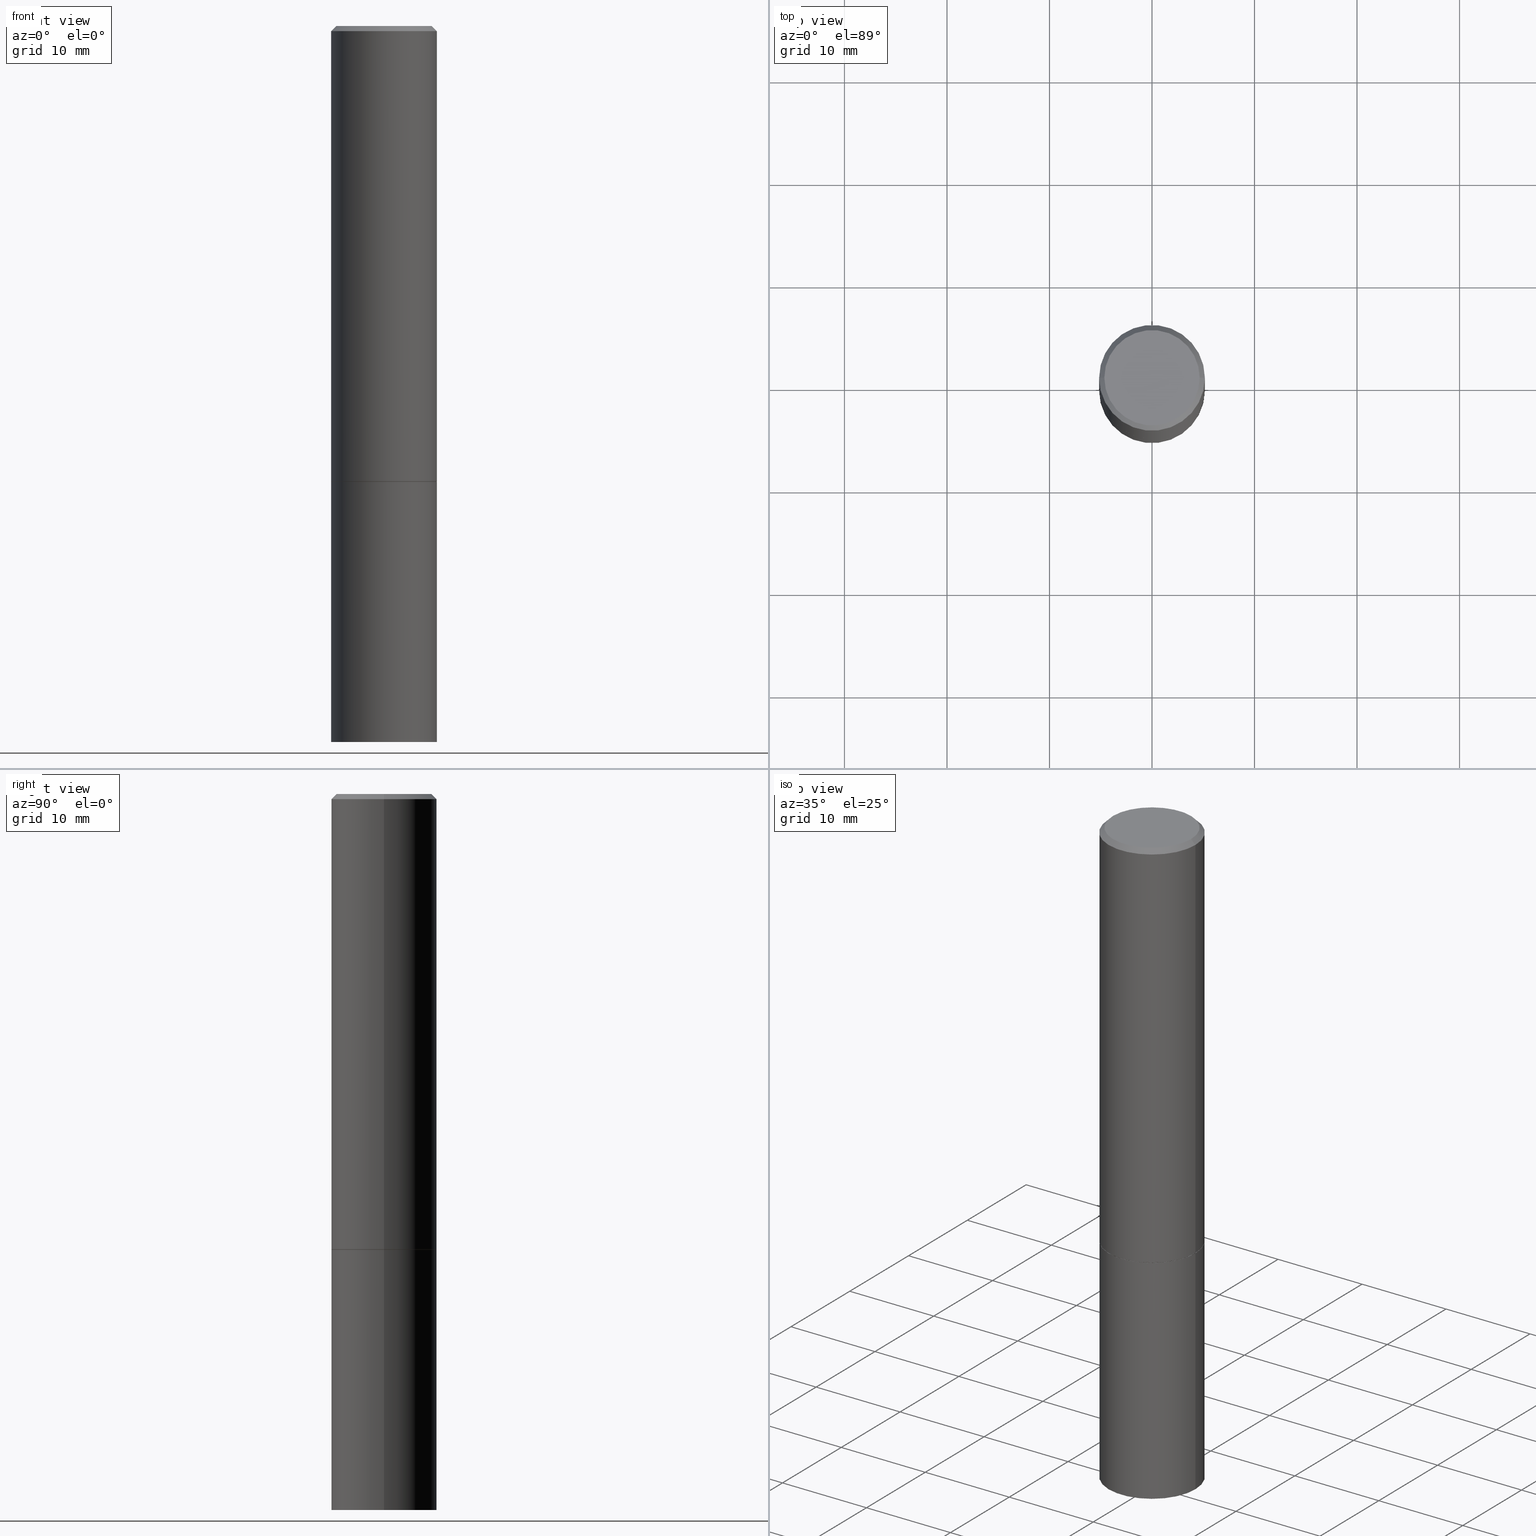
[diagram: canonical four-view strip — front | top / right | iso, engineering-drawing reading convention]
A machine part, canonical four-view strip (front | top / right | iso — engineering-drawing reading convention). The complete STEP part file that produces these views, byte-faithful:
ISO-10303-21;
HEADER;
FILE_DESCRIPTION (( 'STEP AP203' ),
    '1' );
FILE_NAME ('30151.STEP',
    '2023-03-21T20:23:18',
    ( '' ),
    ( '' ),
    'SwSTEP 2.0',
    'SolidWorks 2022',
    '' );
FILE_SCHEMA (( 'CONFIG_CONTROL_DESIGN' ));
ENDSEC;

DATA;
#1 = CARTESIAN_POINT ( 'NONE',  ( 1.418239719838123571E-15, 0.2030999999999938965, -1.750000000000000666 ) ) ;
#2 = CARTESIAN_POINT ( 'NONE',  ( -4.871854198842910760E-19, -9.564410284714797883E-15, -2.739355980027615711 ) ) ;
#3 = UNCERTAINTY_MEASURE_WITH_UNIT (LENGTH_MEASURE( 1.000000000000000082E-05 ), #272, 'distance_accuracy_value', 'NONE');
#4 = CARTESIAN_POINT ( 'NONE',  ( 0.2031000000000000028, -1.418239719838080775E-15, 9.903515031641546145E-30 ) ) ;
#5 = AXIS2_PLACEMENT_3D ( 'NONE', #106, #217, #305 ) ;
#6 = DIRECTION ( 'NONE',  ( -2.445468806185136597E-29, 3.491481338843145583E-15, 1.000000000000000000 ) ) ;
#7 = CC_DESIGN_APPROVAL ( #101, ( #180 ) ) ;
#8 = EDGE_CURVE ( 'NONE', #208, #133, #359, .T. ) ;
#9 = DIRECTION ( 'NONE',  ( -2.445468806185136597E-29, 3.491481338843145583E-15, 1.000000000000000000 ) ) ;
#10 = DIRECTION ( 'NONE',  ( 1.000000000000000000, -6.982962677686264344E-15, 0.000000000000000000 ) ) ;
#11 = ORIENTED_EDGE ( 'NONE', *, *, #385, .T. ) ;
#12 = DIRECTION ( 'NONE',  ( 1.000000000000000000, -6.982962677686269077E-15, 0.000000000000000000 ) ) ;
#13 = AXIS2_PLACEMENT_3D ( 'NONE', #328, #209, #129 ) ;
#14 = CC_DESIGN_APPROVAL ( #288, ( #35 ) ) ;
#15 = APPROVAL_ROLE ( '' ) ;
#16 = LINE ( 'NONE', #273, #61 ) ;
#17 = EDGE_CURVE ( 'NONE', #298, #227, #282, .T. ) ;
#18 = DIRECTION ( 'NONE',  ( 0.000000000000000000, 0.000000000000000000, 1.000000000000000000 ) ) ;
#19 = PERSON_AND_ORGANIZATION_ROLE ( 'creator' ) ;
#20 = CIRCLE ( 'NONE', #285, 0.2030999999999998362 ) ;
#21 = SECURITY_CLASSIFICATION ( '', '', #313 ) ;
#22 = DIRECTION ( 'NONE',  ( 1.000000000000000000, -6.982962677686264344E-15, 0.000000000000000000 ) ) ;
#23 = COORDINATED_UNIVERSAL_TIME_OFFSET ( 5, 0, .BEHIND. ) ;
#24 = EDGE_LOOP ( 'NONE', ( #302, #171, #164, #235 ) ) ;
#25 = APPROVAL_ROLE ( '' ) ;
#26 = ORIENTED_EDGE ( 'NONE', *, *, #130, .T. ) ;
#27 = PRODUCT ( '30151', '30151', '', ( #191 ) ) ;
#28 = FACE_OUTER_BOUND ( 'NONE', #201, .T. ) ;
#29 = DIRECTION ( 'NONE',  ( -1.000000000000000000, 6.982962677686266711E-15, 0.000000000000000000 ) ) ;
#30 = CONICAL_SURFACE ( 'NONE', #13, 0.2030999999999998362, 0.7853981633974469467 ) ;
#31 = EDGE_LOOP ( 'NONE', ( #82, #356 ) ) ;
#32 = PERSON ( 'UNSPECIFIED', 'UNSPECIFIED', 'UNSPECIFIED', ('UNSPECIFIED'), ('UNSPECIFIED'), ('UNSPECIFIED') ) ;
#33 = LINE ( 'NONE', #183, #197 ) ;
#34 = CARTESIAN_POINT ( 'NONE',  ( 0.1830999999999998462, -1.359676976758113188E-15, 9.224940175330600101E-30 ) ) ;
#35 = PRODUCT_DEFINITION ( 'UNKNOWN', '', #180, #337 ) ;
#36 = CARTESIAN_POINT ( 'NONE',  ( 4.279570410823988484E-29, -6.110092342975504671E-15, -1.750000000000000000 ) ) ;
#37 = CIRCLE ( 'NONE', #224, 0.2021000000000000019 ) ;
#38 = CYLINDRICAL_SURFACE ( 'NONE', #110, 0.2030999999999999472 ) ;
#39 = ORIENTED_EDGE ( 'NONE', *, *, #381, .F. ) ;
#40 = DIRECTION ( 'NONE',  ( -2.445468806185136597E-29, 3.491481338843145583E-15, 1.000000000000000000 ) ) ;
#41 = VECTOR ( 'NONE', #339, 39.37007874015748143 ) ;
#42 = FACE_OUTER_BOUND ( 'NONE', #74, .T. ) ;
#43 = ADVANCED_FACE ( 'NONE', ( #46 ), #73, .T. ) ;
#44 = APPROVAL_DATE_TIME ( #308, #288 ) ;
#45 = ADVANCED_FACE ( 'NONE', ( #107 ), #219, .F. ) ;
#46 = FACE_OUTER_BOUND ( 'NONE', #258, .T. ) ;
#47 = DIRECTION ( 'NONE',  ( -2.445468806185136597E-29, 3.491481338843145583E-15, 1.000000000000000000 ) ) ;
#48 = AXIS2_PLACEMENT_3D ( 'NONE', #102, #134, #333 ) ;
#49 = PERSON_AND_ORGANIZATION ( #32, #62 ) ;
#50 = EDGE_CURVE ( 'NONE', #325, #387, #255, .T. ) ;
#51 = PERSON_AND_ORGANIZATION_ROLE ( 'design_supplier' ) ;
#52 = ORIENTED_EDGE ( 'NONE', *, *, #366, .T. ) ;
#53 = APPROVAL_STATUS ( 'not_yet_approved' ) ;
#54 = ORIENTED_EDGE ( 'NONE', *, *, #366, .F. ) ;
#55 = DATE_AND_TIME ( #225, #326 ) ;
#56 = ORIENTED_EDGE ( 'NONE', *, *, #322, .T. ) ;
#57 = DIRECTION ( 'NONE',  ( 1.000000000000000000, -6.982962677686266711E-15, 4.876176775795935793E-29 ) ) ;
#58 = ORIENTED_EDGE ( 'NONE', *, *, #318, .F. ) ;
#59 = DIRECTION ( 'NONE',  ( -2.445468806185136597E-29, 3.491481338843145583E-15, 1.000000000000000000 ) ) ;
#60 = CARTESIAN_POINT ( 'NONE',  ( 4.279570410823989044E-29, -6.110092342975505460E-15, -1.750000000000000222 ) ) ;
#61 = VECTOR ( 'NONE', #138, 39.37007874015748143 ) ;
#62 = ORGANIZATION ( 'UNSPECIFIED', 'UNSPECIFIED', '' ) ;
#63 = CARTESIAN_POINT ( 'NONE',  ( 0.2021000000000000019, -7.521349100135901010E-15, -1.750000000000000222 ) ) ;
#64 = CARTESIAN_POINT ( 'NONE',  ( -0.1830999999999998462, 1.313495279672785236E-15, -9.063697641761070783E-30 ) ) ;
#65 = EDGE_LOOP ( 'NONE', ( #382, #250 ) ) ;
#66 = DIRECTION ( 'NONE',  ( 1.000000000000000000, -6.982962677686269077E-15, 0.000000000000000000 ) ) ;
#67 = EDGE_CURVE ( 'NONE', #208, #281, #114, .T. ) ;
#68 = LOCAL_TIME ( 16, 23, 18.00000000000000000, #278 ) ;
#69 = FACE_OUTER_BOUND ( 'NONE', #316, .T. ) ;
#70 =( LENGTH_UNIT ( ) NAMED_UNIT ( * ) SI_UNIT ( $, .METRE. ) );
#71 = EDGE_CURVE ( 'NONE', #227, #266, #168, .T. ) ;
#72 = DIRECTION ( 'NONE',  ( -2.445468806185136597E-29, 3.491481338843145583E-15, 1.000000000000000000 ) ) ;
#73 = CYLINDRICAL_SURFACE ( 'NONE', #276, 0.2031000000000000028 ) ;
#74 = EDGE_LOOP ( 'NONE', ( #58, #188, #321, #152 ) ) ;
#75 = DIRECTION ( 'NONE',  ( -2.445468806185136597E-29, 3.491481338843145583E-15, 1.000000000000000000 ) ) ;
#76 = CIRCLE ( 'NONE', #324, 0.1830999999999998462 ) ;
#77 = LENGTH_MEASURE_WITH_UNIT ( LENGTH_MEASURE( 0.02539999999999999897 ), #70 );
#78 = ADVANCED_FACE ( 'NONE', ( #213 ), #153, .F. ) ;
#79 = CC_DESIGN_DATE_AND_TIME_ASSIGNMENT ( #55, #170, ( #21 ) ) ;
#80 = AXIS2_PLACEMENT_3D ( 'NONE', #362, #294, #156 ) ;
#81 = CC_DESIGN_PERSON_AND_ORGANIZATION_ASSIGNMENT ( #49, #379, ( #21 ) ) ;
#82 = ORIENTED_EDGE ( 'NONE', *, *, #260, .T. ) ;
#83 = CARTESIAN_POINT ( 'NONE',  ( -0.2030999999999998362, 1.348410093061216491E-15, -0.02000000000000004552 ) ) ;
#84 = AXIS2_PLACEMENT_3D ( 'NONE', #373, #159, #177 ) ;
#85 = APPROVAL_PERSON_ORGANIZATION ( #376, #101, #172 ) ;
#86 = DIRECTION ( 'NONE',  ( -2.445468806185136597E-29, 3.491481338843145583E-15, 1.000000000000000000 ) ) ;
#87 = ORIENTED_EDGE ( 'NONE', *, *, #277, .T. ) ;
#88 = DIRECTION ( 'NONE',  ( -0.9986295347545742773, 6.790662755453668466E-15, -0.05233595624293643084 ) ) ;
#89 = ORIENTED_EDGE ( 'NONE', *, *, #215, .F. ) ;
#90 = FACE_OUTER_BOUND ( 'NONE', #104, .T. ) ;
#91 = CYLINDRICAL_SURFACE ( 'NONE', #251, 0.2030999999999999472 ) ;
#92 = CLOSED_SHELL ( 'NONE', ( #344, #203, #253, #117, #374, #121, #158, #162 ) ) ;
#93 = VECTOR ( 'NONE', #261, 39.37007874015748143 ) ;
#94 = EDGE_CURVE ( 'NONE', #387, #325, #292, .T. ) ;
#95 = VERTEX_POINT ( 'NONE', #142 ) ;
#96 = DIMENSIONAL_EXPONENTS ( 1.000000000000000000, 0.000000000000000000, 0.000000000000000000, 0.000000000000000000, 0.000000000000000000, 0.000000000000000000, 0.000000000000000000 ) ;
#97 = CARTESIAN_POINT ( 'NONE',  ( -0.2021000000000000019, -4.674085474004342577E-15, -1.750000000000000222 ) ) ;
#98 = ORIENTED_EDGE ( 'NONE', *, *, #341, .F. ) ;
#99 = PERSON_AND_ORGANIZATION ( #32, #62 ) ;
#100 = ORIENTED_EDGE ( 'NONE', *, *, #50, .F. ) ;
#101 = APPROVAL ( #53, 'UNSPECIFIED' ) ;
#102 = CARTESIAN_POINT ( 'NONE',  ( 0.000000000000000000, 0.000000000000000000, 0.000000000000000000 ) ) ;
#103 = AXIS2_PLACEMENT_3D ( 'NONE', #248, #72, #364 ) ;
#104 = EDGE_LOOP ( 'NONE', ( #338, #56 ) ) ;
#105 = VERTEX_POINT ( 'NONE', #377 ) ;
#106 = CARTESIAN_POINT ( 'NONE',  ( 6.725039217009124520E-29, -9.601573681818649859E-15, -2.750000000000000000 ) ) ;
#107 = FACE_OUTER_BOUND ( 'NONE', #155, .T. ) ;
#108 =( NAMED_UNIT ( * ) PLANE_ANGLE_UNIT ( ) SI_UNIT ( $, .RADIAN. ) );
#109 = ADVANCED_FACE ( 'NONE', ( #195 ), #303, .T. ) ;
#110 = AXIS2_PLACEMENT_3D ( 'NONE', #340, #135, #223 ) ;
#111 = CIRCLE ( 'NONE', #246, 0.1830999999999998462 ) ;
#112 = AXIS2_PLACEMENT_3D ( 'NONE', #372, #18, #334 ) ;
#113 = COORDINATED_UNIVERSAL_TIME_OFFSET ( 5, 0, .BEHIND. ) ;
#114 = LINE ( 'NONE', #199, #41 ) ;
#115 = VECTOR ( 'NONE', #88, 39.37007874015748143 ) ;
#116 = ORIENTED_EDGE ( 'NONE', *, *, #297, .F. ) ;
#117 = ADVANCED_FACE ( 'NONE', ( #69 ), #179, .T. ) ;
#118 = AXIS2_PLACEMENT_3D ( 'NONE', #161, #331, #301 ) ;
#119 = CARTESIAN_POINT ( 'NONE',  ( 0.000000000000000000, 0.000000000000000000, 0.000000000000000000 ) ) ;
#120 = ORIENTED_EDGE ( 'NONE', *, *, #297, .T. ) ;
#121 = ADVANCED_FACE ( 'NONE', ( #128 ), #238, .T. ) ;
#122 = DIRECTION ( 'NONE',  ( -2.445468806185136597E-29, 3.491481338843145583E-15, 1.000000000000000000 ) ) ;
#123 = ORIENTED_EDGE ( 'NONE', *, *, #67, .F. ) ;
#124 = PLANE ( 'NONE',  #368 ) ;
#125 = APPLICATION_CONTEXT ( 'configuration controlled 3d designs of mechanical parts and assemblies' ) ;
#126 = LINE ( 'NONE', #320, #271 ) ;
#127 = AXIS2_PLACEMENT_3D ( 'NONE', #350, #86, #66 ) ;
#128 = FACE_OUTER_BOUND ( 'NONE', #216, .T. ) ;
#129 = DIRECTION ( 'NONE',  ( -1.000000000000000000, 6.982962677686266711E-15, 0.000000000000000000 ) ) ;
#130 = EDGE_CURVE ( 'NONE', #206, #266, #16, .T. ) ;
#131 = CARTESIAN_POINT ( 'NONE',  ( 6.725039217009124520E-29, -9.601573681818649859E-15, -2.750000000000000000 ) ) ;
#132 = CALENDAR_DATE ( 2023, 21, 3 ) ;
#133 = VERTEX_POINT ( 'NONE', #165 ) ;
#134 = DIRECTION ( 'NONE',  ( -2.445468806185136597E-29, 3.491481338843145583E-15, 1.000000000000000000 ) ) ;
#135 = DIRECTION ( 'NONE',  ( -2.445468806185136597E-29, 3.491481338843145583E-15, 1.000000000000000000 ) ) ;
#136 = COORDINATED_UNIVERSAL_TIME_OFFSET ( 5, 0, .BEHIND. ) ;
#137 = DIRECTION ( 'NONE',  ( -2.445468806185136597E-29, 3.491481338843145583E-15, 1.000000000000000000 ) ) ;
#138 = DIRECTION ( 'NONE',  ( 0.7071067811865465735, -7.319954787623252890E-15, -0.7071067811865484609 ) ) ;
#139 = DATE_AND_TIME ( #280, #211 ) ;
#140 = EDGE_LOOP ( 'NONE', ( #52, #390, #184, #237 ) ) ;
#141 = CIRCLE ( 'NONE', #342, 0.2031000000000000028 ) ;
#142 = CARTESIAN_POINT ( 'NONE',  ( 0.2031000000000000028, -7.528332062813585446E-15, -1.750000000000000000 ) ) ;
#143 = DIRECTION ( 'NONE',  ( 1.000000000000000000, -6.982962677686264344E-15, 0.000000000000000000 ) ) ;
#144 = APPROVAL_STATUS ( 'not_yet_approved' ) ;
#145 = ORIENTED_EDGE ( 'NONE', *, *, #94, .F. ) ;
#146 = AXIS2_PLACEMENT_3D ( 'NONE', #239, #189, #22 ) ;
#147 = DATE_AND_TIME ( #286, #68 ) ;
#148 = CC_DESIGN_PERSON_AND_ORGANIZATION_ASSIGNMENT ( #274, #19, ( #35 ) ) ;
#149 = FACE_OUTER_BOUND ( 'NONE', #65, .T. ) ;
#150 = EDGE_CURVE ( 'NONE', #105, #202, #361, .T. ) ;
#151 = FACE_OUTER_BOUND ( 'NONE', #24, .T. ) ;
#152 = ORIENTED_EDGE ( 'NONE', *, *, #71, .F. ) ;
#153 = PLANE ( 'NONE',  #351 ) ;
#154 = LINE ( 'NONE', #2, #115 ) ;
#155 = EDGE_LOOP ( 'NONE', ( #222, #120, #54 ) ) ;
#156 = DIRECTION ( 'NONE',  ( 1.000000000000000000, -6.982962677686266711E-15, 0.000000000000000000 ) ) ;
#157 = DIRECTION ( 'NONE',  ( 2.438088387897960049E-29, -3.491481338843145188E-15, -1.000000000000000000 ) ) ;
#158 = ADVANCED_FACE ( 'NONE', ( #149 ), #354, .F. ) ;
#159 = DIRECTION ( 'NONE',  ( -2.445468806185136597E-29, 3.491481338843145583E-15, 1.000000000000000000 ) ) ;
#160 = AXIS2_PLACEMENT_3D ( 'NONE', #196, #47, #143 ) ;
#161 = CARTESIAN_POINT ( 'NONE',  ( 4.890937612370284544E-31, -6.982962677686307633E-17, -0.02000000000000004552 ) ) ;
#162 = ADVANCED_FACE ( 'NONE', ( #90 ), #124, .F. ) ;
#163 = DIRECTION ( 'NONE',  ( -2.445468806185136597E-29, 3.491481338843145583E-15, 1.000000000000000000 ) ) ;
#164 = ORIENTED_EDGE ( 'NONE', *, *, #249, .F. ) ;
#165 = CARTESIAN_POINT ( 'NONE',  ( 0.2030999999999997530, -1.099494082516604752E-14, -2.750000000000000000 ) ) ;
#166 = VECTOR ( 'NONE', #214, 39.37007874015748143 ) ;
#167 = CARTESIAN_POINT ( 'NONE',  ( 4.279570410823989044E-29, -6.110092342975505460E-15, -1.750000000000000222 ) ) ;
#168 = CIRCLE ( 'NONE', #80, 0.2030999999999998362 ) ;
#169 = PERSON_AND_ORGANIZATION ( #32, #62 ) ;
#170 = DATE_TIME_ROLE ( 'classification_date' ) ;
#171 = ORIENTED_EDGE ( 'NONE', *, *, #318, .T. ) ;
#172 = APPROVAL_ROLE ( '' ) ;
#173 = CIRCLE ( 'NONE', #5, 0.2031000000000000028 ) ;
#174 = CC_DESIGN_SECURITY_CLASSIFICATION ( #21, ( #180 ) ) ;
#175 = ORIENTED_EDGE ( 'NONE', *, *, #215, .T. ) ;
#176 = DIRECTION ( 'NONE',  ( 1.000000000000000000, -6.982962677686265922E-15, 4.876176775795935793E-29 ) ) ;
#177 = DIRECTION ( 'NONE',  ( 1.000000000000000000, -6.982962677686269077E-15, 0.000000000000000000 ) ) ;
#178 = VERTEX_POINT ( 'NONE', #182 ) ;
#179 = CONICAL_SURFACE ( 'NONE', #118, 0.2030999999999998362, 0.7853981633974469467 ) ;
#180 = PRODUCT_DEFINITION_FORMATION_WITH_SPECIFIED_SOURCE ( 'ANY', '', #27, .NOT_KNOWN. ) ;
#181 = CARTESIAN_POINT ( 'NONE',  ( 4.890937612370284544E-31, -6.982962677686307633E-17, -0.02000000000000004552 ) ) ;
#182 = CARTESIAN_POINT ( 'NONE',  ( 6.698669398433785065E-29, -9.564897470134749414E-15, -2.739355980027615711 ) ) ;
#183 = CARTESIAN_POINT ( 'NONE',  ( 0.2021000000000000019, -7.521349100135901010E-15, -1.750000000000000222 ) ) ;
#184 = ORIENTED_EDGE ( 'NONE', *, *, #260, .F. ) ;
#185 = DIRECTION ( 'NONE',  ( 1.000000000000000000, -6.982962677686266711E-15, 4.876176775795935793E-29 ) ) ;
#186 = AXIS2_PLACEMENT_3D ( 'NONE', #232, #257, #29 ) ;
#187 = LOCAL_TIME ( 16, 23, 18.00000000000000000, #136 ) ;
#188 = ORIENTED_EDGE ( 'NONE', *, *, #94, .T. ) ;
#189 = DIRECTION ( 'NONE',  ( -2.445468806185136597E-29, 3.491481338843145583E-15, 1.000000000000000000 ) ) ;
#190 = CARTESIAN_POINT ( 'NONE',  ( 4.279570410823988484E-29, -6.110092342975504671E-15, -1.750000000000000000 ) ) ;
#191 = MECHANICAL_CONTEXT ( 'NONE', #125, 'mechanical' ) ;
#192 = CARTESIAN_POINT ( 'NONE',  ( -0.2031000000000000583, -1.645102947877997012E-15, -1.748999999999999888 ) ) ;
#193 = PERSON_AND_ORGANIZATION_ROLE ( 'design_owner' ) ;
#194 = CC_DESIGN_PERSON_AND_ORGANIZATION_ASSIGNMENT ( #169, #309, ( #180 ) ) ;
#195 = FACE_OUTER_BOUND ( 'NONE', #140, .T. ) ;
#196 = CARTESIAN_POINT ( 'NONE',  ( 4.277124942017804002E-29, -6.106600861636660875E-15, -1.748999999999999888 ) ) ;
#197 = VECTOR ( 'NONE', #236, 39.37007874015748143 ) ;
#198 = APPROVAL_PERSON_ORGANIZATION ( #226, #388, #25 ) ;
#199 = CARTESIAN_POINT ( 'NONE',  ( -0.2031000000000000028, 1.443112296328763497E-15, -9.990357168307714203E-30 ) ) ;
#200 = APPROVAL_DATE_TIME ( #139, #101 ) ;
#201 = EDGE_LOOP ( 'NONE', ( #230, #26, #329, #360 ) ) ;
#202 = VERTEX_POINT ( 'NONE', #63 ) ;
#203 = ADVANCED_FACE ( 'NONE', ( #151 ), #91, .T. ) ;
#204 = CARTESIAN_POINT ( 'NONE',  ( 0.000000000000000000, 0.000000000000000000, 0.000000000000000000 ) ) ;
#205 = ADVANCED_FACE ( 'NONE', ( #207 ), #347, .F. ) ;
#206 = VERTEX_POINT ( 'NONE', #34 ) ;
#207 = FACE_OUTER_BOUND ( 'NONE', #289, .T. ) ;
#208 = VERTEX_POINT ( 'NONE', #389 ) ;
#209 = DIRECTION ( 'NONE',  ( 2.445468806185136597E-29, -3.491481338843145583E-15, -1.000000000000000000 ) ) ;
#210 = CIRCLE ( 'NONE', #375, 0.2031000000000000028 ) ;
#211 = LOCAL_TIME ( 16, 23, 18.00000000000000000, #113 ) ;
#212 = CARTESIAN_POINT ( 'NONE',  ( 0.2031000000000000028, -7.524840581474740861E-15, -1.748999999999999888 ) ) ;
#213 = FACE_OUTER_BOUND ( 'NONE', #31, .T. ) ;
#214 = DIRECTION ( 'NONE',  ( -0.7071067811864267805, 7.493145998869918709E-15, 0.7071067811866682540 ) ) ;
#215 = EDGE_CURVE ( 'NONE', #202, #325, #33, .T. ) ;
#216 = EDGE_LOOP ( 'NONE', ( #98, #229, #175, #145 ) ) ;
#217 = DIRECTION ( 'NONE',  ( -2.445468806185136597E-29, 3.491481338843145583E-15, 1.000000000000000000 ) ) ;
#218 = DIRECTION ( 'NONE',  ( 0.9986295347545742773, -7.033825938271997912E-15, -0.05233595624293643084 ) ) ;
#219 = CONICAL_SURFACE ( 'NONE', #315, 751.2258538476739886, 1.518436449235074148 ) ;
#220 = DIRECTION ( 'NONE',  ( -1.000000000000000000, 6.982962677686266711E-15, 0.000000000000000000 ) ) ;
#221 = CC_DESIGN_PERSON_AND_ORGANIZATION_ASSIGNMENT ( #99, #193, ( #27 ) ) ;
#222 = ORIENTED_EDGE ( 'NONE', *, *, #385, .F. ) ;
#223 = DIRECTION ( 'NONE',  ( 1.000000000000000000, -6.982962677686266711E-15, 4.876176775795935793E-29 ) ) ;
#224 = AXIS2_PLACEMENT_3D ( 'NONE', #167, #163, #12 ) ;
#225 = CALENDAR_DATE ( 2023, 21, 3 ) ;
#226 = PERSON_AND_ORGANIZATION ( #32, #62 ) ;
#227 = VERTEX_POINT ( 'NONE', #296 ) ;
#228 = DATE_TIME_ROLE ( 'creation_date' ) ;
#229 = ORIENTED_EDGE ( 'NONE', *, *, #150, .T. ) ;
#230 = ORIENTED_EDGE ( 'NONE', *, *, #322, .F. ) ;
#231 = VECTOR ( 'NONE', #358, 39.37007874015748143 ) ;
#232 = CARTESIAN_POINT ( 'NONE',  ( 1.029773090543019914E-27, -1.470243055147599021E-13, -42.10943472018509937 ) ) ;
#233 = ORIENTED_EDGE ( 'NONE', *, *, #8, .T. ) ;
#234 = LINE ( 'NONE', #4, #93 ) ;
#235 = ORIENTED_EDGE ( 'NONE', *, *, #279, .F. ) ;
#236 = DIRECTION ( 'NONE',  ( 0.7071067811864267805, -2.468850131080992517E-15, 0.7071067811866682540 ) ) ;
#237 = ORIENTED_EDGE ( 'NONE', *, *, #277, .F. ) ;
#238 = CONICAL_SURFACE ( 'NONE', #103, 0.2021000000000000019, 0.7853981633972775267 ) ;
#239 = CARTESIAN_POINT ( 'NONE',  ( 4.277124942017804002E-29, -6.106600861636660875E-15, -1.748999999999999888 ) ) ;
#240 = CARTESIAN_POINT ( 'NONE',  ( -0.2030999999999999472, 1.443112296328763103E-15, -9.990357168307711400E-30 ) ) ;
#241 = CARTESIAN_POINT ( 'NONE',  ( 4.871854200182712814E-19, -9.564410284714797883E-15, -2.739355980027615711 ) ) ;
#242 = AXIS2_PLACEMENT_3D ( 'NONE', #131, #6, #10 ) ;
#243 = CC_DESIGN_APPROVAL ( #388, ( #21 ) ) ;
#244 = CALENDAR_DATE ( 2023, 21, 3 ) ;
#245 = APPROVAL_STATUS ( 'not_yet_approved' ) ;
#246 = AXIS2_PLACEMENT_3D ( 'NONE', #330, #75, #185 ) ;
#247 = CARTESIAN_POINT ( 'NONE',  ( 1.029773090543019914E-27, -1.470243055147599021E-13, -42.10943472018509937 ) ) ;
#248 = CARTESIAN_POINT ( 'NONE',  ( 4.279570410823989044E-29, -6.110092342975505460E-15, -1.750000000000000222 ) ) ;
#249 = EDGE_CURVE ( 'NONE', #266, #227, #20, .T. ) ;
#250 = ORIENTED_EDGE ( 'NONE', *, *, #150, .F. ) ;
#251 = AXIS2_PLACEMENT_3D ( 'NONE', #204, #9, #57 ) ;
#252 = APPROVAL_DATE_TIME ( #147, #388 ) ;
#253 = ADVANCED_FACE ( 'NONE', ( #28 ), #30, .T. ) ;
#254 = CARTESIAN_POINT ( 'NONE',  ( -0.2031000000000000028, -6.412720716068313768E-15, -1.750000000000000000 ) ) ;
#255 = CIRCLE ( 'NONE', #160, 0.2031000000000000028 ) ;
#256 =( GEOMETRIC_REPRESENTATION_CONTEXT ( 3 ) GLOBAL_UNCERTAINTY_ASSIGNED_CONTEXT ( ( #3 ) ) GLOBAL_UNIT_ASSIGNED_CONTEXT ( ( #272, #108, #369 ) ) REPRESENTATION_CONTEXT ( 'NONE', 'WORKASPACE' ) );
#257 = DIRECTION ( 'NONE',  ( 2.445468806185136597E-29, -3.491481338843145583E-15, -1.000000000000000000 ) ) ;
#258 = EDGE_LOOP ( 'NONE', ( #123, #233, #87, #291 ) ) ;
#259 = DIRECTION ( 'NONE',  ( 2.438088387897960049E-29, -3.491481338843145188E-15, -1.000000000000000000 ) ) ;
#260 = EDGE_CURVE ( 'NONE', #95, #281, #210, .T. ) ;
#261 = DIRECTION ( 'NONE',  ( -2.445468806185136877E-29, 3.491481338843145188E-15, 1.000000000000000000 ) ) ;
#262 = CC_DESIGN_PERSON_AND_ORGANIZATION_ASSIGNMENT ( #283, #51, ( #180 ) ) ;
#263 = DIRECTION ( 'NONE',  ( 1.000000000000000000, -6.982962677686266711E-15, 0.000000000000000000 ) ) ;
#264 = FACE_OUTER_BOUND ( 'NONE', #352, .T. ) ;
#265 = ORIENTED_EDGE ( 'NONE', *, *, #17, .T. ) ;
#266 = VERTEX_POINT ( 'NONE', #293 ) ;
#267 = DIRECTION ( 'NONE',  ( 1.000000000000000000, -6.982962677686269866E-15, 0.000000000000000000 ) ) ;
#268 = DIRECTION ( 'NONE',  ( 1.000000000000000000, -6.982962677686266711E-15, 4.876176775795935793E-29 ) ) ;
#269 = DIRECTION ( 'NONE',  ( -1.000000000000000000, 6.982962677686265922E-15, -4.876176775795935793E-29 ) ) ;
#270 = PERSON_AND_ORGANIZATION ( #32, #62 ) ;
#271 = VECTOR ( 'NONE', #287, 39.37007874015748143 ) ;
#272 =( CONVERSION_BASED_UNIT ( 'INCH', #77 ) LENGTH_UNIT ( ) NAMED_UNIT ( #96 ) );
#273 = CARTESIAN_POINT ( 'NONE',  ( 0.2030999999999998362, -1.463196770124260168E-15, -0.02000000000000004552 ) ) ;
#274 = PERSON_AND_ORGANIZATION ( #32, #62 ) ;
#275 = DIRECTION ( 'NONE',  ( -0.7071067811865465735, 2.468850131082246805E-15, -0.7071067811865484609 ) ) ;
#276 = AXIS2_PLACEMENT_3D ( 'NONE', #343, #137, #268 ) ;
#277 = EDGE_CURVE ( 'NONE', #133, #95, #234, .T. ) ;
#278 = COORDINATED_UNIVERSAL_TIME_OFFSET ( 5, 0, .BEHIND. ) ;
#279 = EDGE_CURVE ( 'NONE', #325, #266, #126, .T. ) ;
#280 = CALENDAR_DATE ( 2023, 21, 3 ) ;
#281 = VERTEX_POINT ( 'NONE', #254 ) ;
#282 = LINE ( 'NONE', #83, #307 ) ;
#283 = PERSON_AND_ORGANIZATION ( #32, #62 ) ;
#284 = ORIENTED_EDGE ( 'NONE', *, *, #71, .T. ) ;
#285 = AXIS2_PLACEMENT_3D ( 'NONE', #181, #353, #263 ) ;
#286 = CALENDAR_DATE ( 2023, 21, 3 ) ;
#287 = DIRECTION ( 'NONE',  ( -2.445468806185136877E-29, 3.491481338843145188E-15, 1.000000000000000000 ) ) ;
#288 = APPROVAL ( #245, 'UNSPECIFIED' ) ;
#289 = EDGE_LOOP ( 'NONE', ( #116, #11, #314 ) ) ;
#290 = DIRECTION ( 'NONE',  ( -2.438088387897960049E-29, 3.491481338843145188E-15, 1.000000000000000000 ) ) ;
#291 = ORIENTED_EDGE ( 'NONE', *, *, #349, .F. ) ;
#292 = CIRCLE ( 'NONE', #146, 0.2031000000000000028 ) ;
#293 = CARTESIAN_POINT ( 'NONE',  ( 0.2030999999999998362, -1.463196770124260168E-15, -0.02000000000000004552 ) ) ;
#294 = DIRECTION ( 'NONE',  ( -2.445468806185136597E-29, 3.491481338843145583E-15, 1.000000000000000000 ) ) ;
#295 = CARTESIAN_POINT ( 'NONE',  ( 1.278580466284354179E-15, 0.1830999999999998462, -6.392902331421793574E-16 ) ) ;
#296 = CARTESIAN_POINT ( 'NONE',  ( -0.2030999999999998362, 1.348410093061216491E-15, -0.02000000000000004552 ) ) ;
#297 = EDGE_CURVE ( 'NONE', #178, #208, #154, .T. ) ;
#298 = VERTEX_POINT ( 'NONE', #64 ) ;
#299 = VECTOR ( 'NONE', #218, 39.37007874015748143 ) ;
#300 = COORDINATED_UNIVERSAL_TIME_OFFSET ( 5, 0, .BEHIND. ) ;
#301 = DIRECTION ( 'NONE',  ( -1.000000000000000000, 6.982962677686266711E-15, 0.000000000000000000 ) ) ;
#302 = ORIENTED_EDGE ( 'NONE', *, *, #50, .T. ) ;
#303 = CYLINDRICAL_SURFACE ( 'NONE', #48, 0.2031000000000000028 ) ;
#304 = LINE ( 'NONE', #241, #299 ) ;
#305 = DIRECTION ( 'NONE',  ( 1.000000000000000000, -6.982962677686264344E-15, 0.000000000000000000 ) ) ;
#306 = CLOSED_SHELL ( 'NONE', ( #109, #205, #45, #43, #78 ) ) ;
#307 = VECTOR ( 'NONE', #275, 39.37007874015748143 ) ;
#308 = DATE_AND_TIME ( #244, #187 ) ;
#309 = PERSON_AND_ORGANIZATION_ROLE ( 'creator' ) ;
#310 = AXIS2_PLACEMENT_3D ( 'NONE', #60, #290, #176 ) ;
#311 = PRODUCT_RELATED_PRODUCT_CATEGORY ( 'detail', '', ( #27 ) ) ;
#312 = APPROVAL_PERSON_ORGANIZATION ( #270, #288, #15 ) ;
#313 = SECURITY_CLASSIFICATION_LEVEL ( 'unclassified' ) ;
#314 = ORIENTED_EDGE ( 'NONE', *, *, #8, .F. ) ;
#315 = AXIS2_PLACEMENT_3D ( 'NONE', #247, #378, #220 ) ;
#316 = EDGE_LOOP ( 'NONE', ( #365, #39, #265, #284 ) ) ;
#317 = LOCAL_TIME ( 16, 23, 18.00000000000000000, #300 ) ;
#318 = EDGE_CURVE ( 'NONE', #387, #227, #386, .T. ) ;
#319 = DIRECTION ( 'NONE',  ( -1.000000000000000000, 6.982962677686265922E-15, -4.876176775795935793E-29 ) ) ;
#320 = CARTESIAN_POINT ( 'NONE',  ( 0.2030999999999999472, -1.418239719838080381E-15, 9.903515031641543342E-30 ) ) ;
#321 = ORIENTED_EDGE ( 'NONE', *, *, #279, .T. ) ;
#322 = EDGE_CURVE ( 'NONE', #206, #298, #76, .T. ) ;
#323 = DIRECTION ( 'NONE',  ( 1.000000000000000000, -6.982962677686269866E-15, 0.000000000000000000 ) ) ;
#324 = AXIS2_PLACEMENT_3D ( 'NONE', #119, #59, #363 ) ;
#325 = VERTEX_POINT ( 'NONE', #212 ) ;
#326 = LOCAL_TIME ( 16, 23, 18.00000000000000000, #23 ) ;
#327 = LINE ( 'NONE', #97, #166 ) ;
#328 = CARTESIAN_POINT ( 'NONE',  ( 4.890937612370284544E-31, -6.982962677686307633E-17, -0.02000000000000004552 ) ) ;
#329 = ORIENTED_EDGE ( 'NONE', *, *, #249, .T. ) ;
#330 = CARTESIAN_POINT ( 'NONE',  ( 0.000000000000000000, 0.000000000000000000, 0.000000000000000000 ) ) ;
#331 = DIRECTION ( 'NONE',  ( 2.445468806185136597E-29, -3.491481338843145583E-15, -1.000000000000000000 ) ) ;
#332 = MANIFOLD_SOLID_BREP ( 'Body-Move/Copy2[2]', #92 ) ;
#333 = DIRECTION ( 'NONE',  ( 1.000000000000000000, -6.982962677686266711E-15, 4.876176775795935793E-29 ) ) ;
#334 = DIRECTION ( 'NONE',  ( 1.000000000000000000, 0.000000000000000000, 0.000000000000000000 ) ) ;
#335 = APPLICATION_PROTOCOL_DEFINITION ( 'international standard', 'config_control_design', 1994, #125 ) ;
#336 = MANIFOLD_SOLID_BREP ( 'Body-Move/Copy2[1]', #306 ) ;
#337 = DESIGN_CONTEXT ( 'detailed design', #345, 'design' ) ;
#338 = ORIENTED_EDGE ( 'NONE', *, *, #381, .T. ) ;
#339 = DIRECTION ( 'NONE',  ( -2.445468806185136877E-29, 3.491481338843145188E-15, 1.000000000000000000 ) ) ;
#340 = CARTESIAN_POINT ( 'NONE',  ( 0.000000000000000000, 0.000000000000000000, 0.000000000000000000 ) ) ;
#341 = EDGE_CURVE ( 'NONE', #105, #387, #327, .T. ) ;
#342 = AXIS2_PLACEMENT_3D ( 'NONE', #190, #40, #267 ) ;
#343 = CARTESIAN_POINT ( 'NONE',  ( 0.000000000000000000, 0.000000000000000000, 0.000000000000000000 ) ) ;
#344 = ADVANCED_FACE ( 'NONE', ( #264 ), #380, .T. ) ;
#345 = APPLICATION_CONTEXT ( 'configuration controlled 3d designs of mechanical parts and assemblies' ) ;
#346 = CC_DESIGN_DATE_AND_TIME_ASSIGNMENT ( #348, #228, ( #35 ) ) ;
#347 = CONICAL_SURFACE ( 'NONE', #186, 751.2258538476739886, 1.518436449235074148 ) ;
#348 = DATE_AND_TIME ( #132, #317 ) ;
#349 = EDGE_CURVE ( 'NONE', #281, #95, #141, .T. ) ;
#350 = CARTESIAN_POINT ( 'NONE',  ( 4.279570410823989044E-29, -6.110092342975505460E-15, -1.750000000000000222 ) ) ;
#351 = AXIS2_PLACEMENT_3D ( 'NONE', #1, #259, #269 ) ;
#352 = EDGE_LOOP ( 'NONE', ( #371, #357, #100, #89 ) ) ;
#353 = DIRECTION ( 'NONE',  ( -2.445468806185136597E-29, 3.491481338843145583E-15, 1.000000000000000000 ) ) ;
#354 = PLANE ( 'NONE',  #310 ) ;
#355 = PRODUCT_DEFINITION_SHAPE ( 'NONE', 'NONE',  #35 ) ;
#356 = ORIENTED_EDGE ( 'NONE', *, *, #349, .T. ) ;
#357 = ORIENTED_EDGE ( 'NONE', *, *, #341, .T. ) ;
#358 = DIRECTION ( 'NONE',  ( -2.445468806185136877E-29, 3.491481338843145188E-15, 1.000000000000000000 ) ) ;
#359 = CIRCLE ( 'NONE', #242, 0.2031000000000000028 ) ;
#360 = ORIENTED_EDGE ( 'NONE', *, *, #17, .F. ) ;
#361 = CIRCLE ( 'NONE', #84, 0.2021000000000000019 ) ;
#362 = CARTESIAN_POINT ( 'NONE',  ( 4.890937612370284544E-31, -6.982962677686307633E-17, -0.02000000000000004552 ) ) ;
#363 = DIRECTION ( 'NONE',  ( 1.000000000000000000, -6.982962677686266711E-15, 4.876176775795935793E-29 ) ) ;
#364 = DIRECTION ( 'NONE',  ( 1.000000000000000000, -6.982962677686269077E-15, 0.000000000000000000 ) ) ;
#365 = ORIENTED_EDGE ( 'NONE', *, *, #130, .F. ) ;
#366 = EDGE_CURVE ( 'NONE', #133, #208, #173, .T. ) ;
#367 = APPLICATION_PROTOCOL_DEFINITION ( 'international standard', 'config_control_design', 1994, #345 ) ;
#368 = AXIS2_PLACEMENT_3D ( 'NONE', #295, #157, #319 ) ;
#369 =( NAMED_UNIT ( * ) SI_UNIT ( $, .STERADIAN. ) SOLID_ANGLE_UNIT ( ) );
#370 = EDGE_CURVE ( 'NONE', #202, #105, #37, .T. ) ;
#371 = ORIENTED_EDGE ( 'NONE', *, *, #370, .T. ) ;
#372 = CARTESIAN_POINT ( 'NONE',  ( 0.000000000000000000, 0.000000000000000000, 0.000000000000000000 ) ) ;
#373 = CARTESIAN_POINT ( 'NONE',  ( 4.279570410823989044E-29, -6.110092342975505460E-15, -1.750000000000000222 ) ) ;
#374 = ADVANCED_FACE ( 'NONE', ( #42 ), #38, .T. ) ;
#375 = AXIS2_PLACEMENT_3D ( 'NONE', #36, #122, #323 ) ;
#376 = PERSON_AND_ORGANIZATION ( #32, #62 ) ;
#377 = CARTESIAN_POINT ( 'NONE',  ( -0.2021000000000000019, -4.668787019656119386E-15, -1.750000000000000222 ) ) ;
#378 = DIRECTION ( 'NONE',  ( 2.445468806185136597E-29, -3.491481338843145583E-15, -1.000000000000000000 ) ) ;
#379 = PERSON_AND_ORGANIZATION_ROLE ( 'classification_officer' ) ;
#380 = CONICAL_SURFACE ( 'NONE', #127, 0.2021000000000000019, 0.7853981633972775267 ) ;
#381 = EDGE_CURVE ( 'NONE', #298, #206, #111, .T. ) ;
#382 = ORIENTED_EDGE ( 'NONE', *, *, #370, .F. ) ;
#383 = ADVANCED_BREP_SHAPE_REPRESENTATION ( '30151', ( #336, #332, #112 ), #256 ) ;
#384 = SHAPE_DEFINITION_REPRESENTATION ( #355, #383 ) ;
#385 = EDGE_CURVE ( 'NONE', #178, #133, #304, .T. ) ;
#386 = LINE ( 'NONE', #240, #231 ) ;
#387 = VERTEX_POINT ( 'NONE', #192 ) ;
#388 = APPROVAL ( #144, 'UNSPECIFIED' ) ;
#389 = CARTESIAN_POINT ( 'NONE',  ( -0.2030999999999997530, -8.183333961980571451E-15, -2.750000000000000000 ) ) ;
#390 = ORIENTED_EDGE ( 'NONE', *, *, #67, .T. ) ;
ENDSEC;
END-ISO-10303-21;
